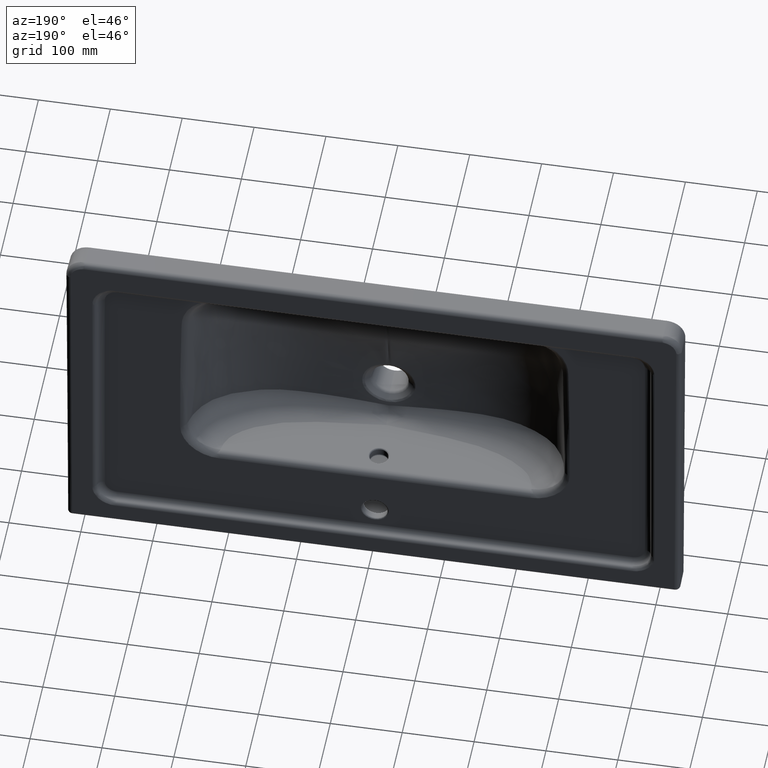
[diagram: clean part render]
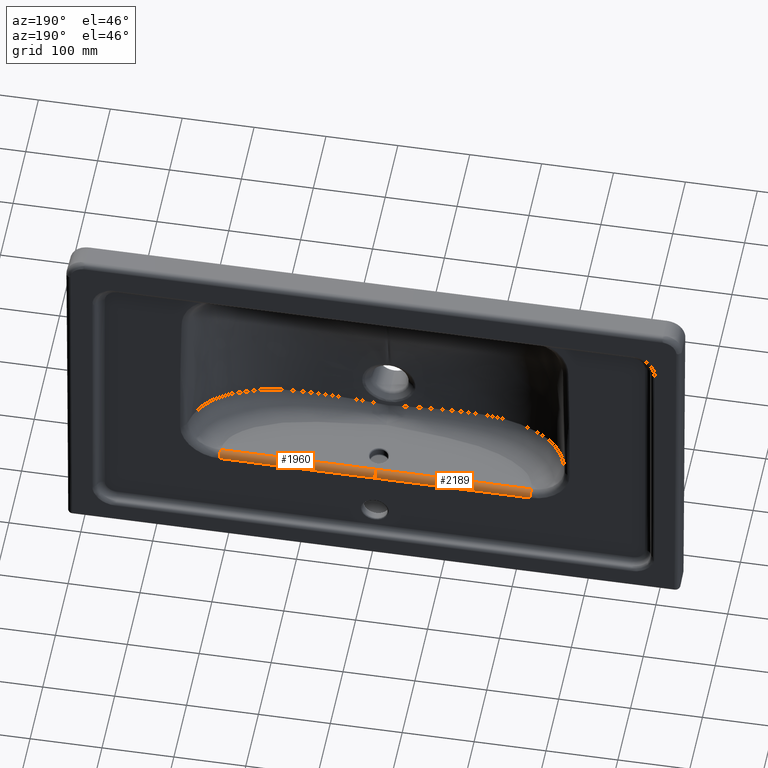
[diagram: same view with one multi-face feature highlighted, each face labeled with its STEP entity id]
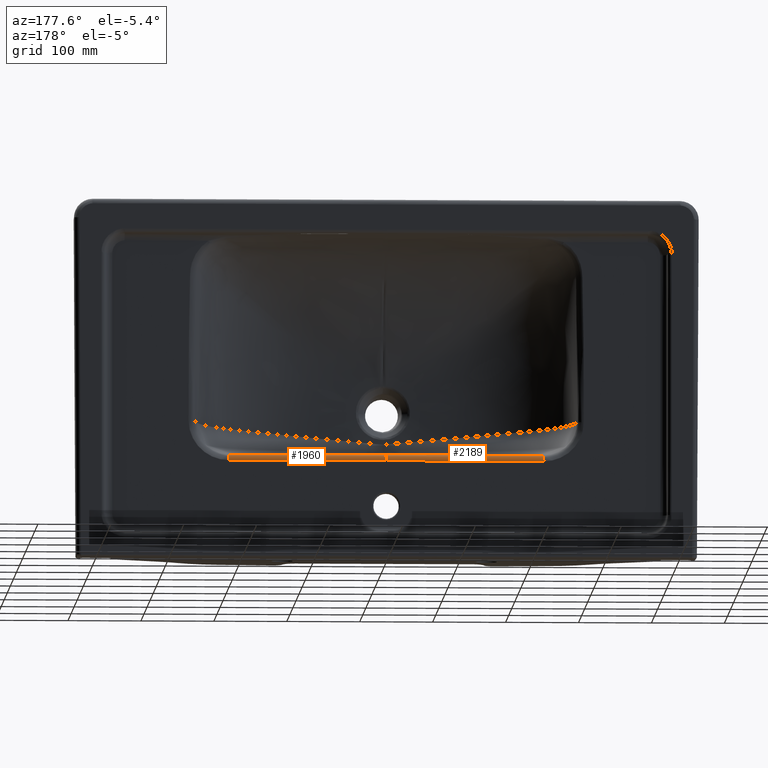
[diagram: same view with one multi-face feature highlighted, each face labeled with its STEP entity id]
A machine part, auxiliary view. The highlighted faces form ONE feature: a constant-radius fillet chain: 2 tangent blend faces with common blend radius 9 mm. The faces share edges in the B-rep.
A second angle (auxiliary view) of the same feature is appended — it is thin or edge-on in the first view.
Their STEP definitions:
[1] entity #1960 (Cylinder):
#210=CYLINDRICAL_SURFACE('',#8098,9.);
#734=CIRCLE('',#8097,9.);
#1316=B_SPLINE_CURVE_WITH_KNOTS('',3,(#26585,#26586,#26587,#26588,#26589,
#26590),.UNSPECIFIED.,.F.,.F.,(4,2,4),(0.,0.5,1.),.UNSPECIFIED.);
#1960=ADVANCED_FACE('',(#2518),#210,.T.);
#2518=FACE_OUTER_BOUND('',#3044,.T.);
#3044=EDGE_LOOP('',(#4481,#4482,#4483,#4484));
#4481=ORIENTED_EDGE('',*,*,#6519,.T.);
#4482=ORIENTED_EDGE('',*,*,#7113,.F.);
#4483=ORIENTED_EDGE('',*,*,#6606,.T.);
#4484=ORIENTED_EDGE('',*,*,#7143,.F.);
#5822=VERTEX_POINT('',#9236);
#5826=VERTEX_POINT('',#9406);
#5907=VERTEX_POINT('',#10076);
#5908=VERTEX_POINT('',#10078);
#6519=EDGE_CURVE('',#5822,#5826,#7730,.T.);
#6606=EDGE_CURVE('',#5908,#5907,#7754,.T.);
#7113=EDGE_CURVE('',#5908,#5826,#1316,.T.);
#7143=EDGE_CURVE('',#5822,#5907,#734,.T.);
#7730=LINE('',#9407,#7814);
#7754=LINE('',#10077,#7838);
#7814=VECTOR('',#8322,1.);
#7838=VECTOR('',#8390,1.);
#8097=AXIS2_PLACEMENT_3D('',#30256,#8767,#8768);
#8098=AXIS2_PLACEMENT_3D('',#30257,#8769,#8770);
#8322=DIRECTION('',(1.,-1.00795385296426E-035,1.0707705283783E-018));
#8390=DIRECTION('',(-1.,0.,-1.0707705283783E-018));
#8767=DIRECTION('',(-1.,0.,0.));
#8768=DIRECTION('',(0.,0.,-1.));
#8769=DIRECTION('',(1.,0.,1.0707705283783E-018));
#8770=DIRECTION('',(0.,0.,1.));
#9236=CARTESIAN_POINT('',(-4.00000000000001,-37.6458258401276,-95.6100423895842));
#9406=CARTESIAN_POINT('',(212.207187202046,-37.6458250139513,-95.610042432882));
#9407=CARTESIAN_POINT('',(213.134275630575,-37.6458258401276,-95.6100423895842));
#10076=CARTESIAN_POINT('',(-4.,-29.1168494463141,-104.597708202375));
#10077=CARTESIAN_POINT('',(-8.00000000000034,-29.1168494463141,-104.597708202375));
#10078=CARTESIAN_POINT('',(212.207665948996,-29.1168494463141,-104.597708193896));
#26585=CARTESIAN_POINT('',(212.207665948996,-29.1168494463141,-104.597708193896));
#26586=CARTESIAN_POINT('',(212.207657428637,-29.1168494463141,-102.320056804102));
#26587=CARTESIAN_POINT('',(212.207644754133,-30.0206433327953,-100.054676228127));
#26588=CARTESIAN_POINT('',(212.20763674839,-33.1563019657066,-96.7503735140821));
#26589=CARTESIAN_POINT('',(212.207641957839,-35.3712739128263,-95.7292525842411));
#26590=CARTESIAN_POINT('',(212.207665949022,-37.6458022402234,-95.610043616265));
#30256=CARTESIAN_POINT('',(-4.,-38.1168494463141,-104.597708202375));
#30257=CARTESIAN_POINT('',(-669.189391889384,-38.1168494463141,-104.597708202375));
[2] entity #2189 (Cylinder):
#226=CYLINDRICAL_SURFACE('',#8254,9.);
#734=CIRCLE('',#8097,9.);
#1680=B_SPLINE_CURVE_WITH_KNOTS('',3,(#52568,#52569,#52570,#52571,#52572,
#52573),.UNSPECIFIED.,.F.,.F.,(4,2,4),(0.,0.5,1.),.UNSPECIFIED.);
#2189=ADVANCED_FACE('',(#2747),#226,.T.);
#2747=FACE_OUTER_BOUND('',#3273,.T.);
#3273=EDGE_LOOP('',(#5523,#5524,#5525,#5526));
#5523=ORIENTED_EDGE('',*,*,#6521,.F.);
#5524=ORIENTED_EDGE('',*,*,#7143,.T.);
#5525=ORIENTED_EDGE('',*,*,#6622,.F.);
#5526=ORIENTED_EDGE('',*,*,#7624,.T.);
#5822=VERTEX_POINT('',#9236);
#5827=VERTEX_POINT('',#9411);
#5907=VERTEX_POINT('',#10076);
#5921=VERTEX_POINT('',#10219);
#6521=EDGE_CURVE('',#5822,#5827,#7731,.T.);
#6622=EDGE_CURVE('',#5921,#5907,#7757,.T.);
#7143=EDGE_CURVE('',#5822,#5907,#734,.T.);
#7624=EDGE_CURVE('',#5921,#5827,#1680,.T.);
#7731=LINE('',#9410,#7815);
#7757=LINE('',#10220,#7841);
#7815=VECTOR('',#8327,1.);
#7841=VECTOR('',#8401,1.);
#8097=AXIS2_PLACEMENT_3D('',#30256,#8767,#8768);
#8254=AXIS2_PLACEMENT_3D('',#56210,#9106,#9107);
#8327=DIRECTION('',(-1.,-1.00795385296426E-035,1.0707705283783E-018));
#8401=DIRECTION('',(1.,0.,-1.0707705283783E-018));
#8767=DIRECTION('',(-1.,0.,0.));
#8768=DIRECTION('',(0.,0.,-1.));
#9106=DIRECTION('',(-1.,0.,1.0707705283783E-018));
#9107=DIRECTION('',(0.,0.,1.));
#9236=CARTESIAN_POINT('',(-4.00000000000001,-37.6458258401276,-95.6100423895842));
#9410=CARTESIAN_POINT('',(-221.134275630575,-37.6458258401276,-95.6100423895842));
#9411=CARTESIAN_POINT('',(-220.207187202046,-37.6458250139513,-95.610042432882));
#10076=CARTESIAN_POINT('',(-4.,-29.1168494463141,-104.597708202375));
#10219=CARTESIAN_POINT('',(-220.207665948996,-29.1168494463141,-104.597708193896));
#10220=CARTESIAN_POINT('',(3.33066907387547E-013,-29.1168494463141,-104.597708202375));
#30256=CARTESIAN_POINT('',(-4.,-38.1168494463141,-104.597708202375));
#52568=CARTESIAN_POINT('',(-220.207665948996,-29.1168494463141,-104.597708202375));
#52569=CARTESIAN_POINT('',(-220.207665948996,-29.1168494463141,-102.320053528523));
#52570=CARTESIAN_POINT('',(-220.207665948996,-30.0206460906068,-100.054669347561));
#52571=CARTESIAN_POINT('',(-220.207665948996,-33.1563141238002,-96.7503646947025));
#52572=CARTESIAN_POINT('',(-220.207665948996,-35.3712926128466,-95.7292456249315));
#52573=CARTESIAN_POINT('',(-220.207665948996,-37.6458258401276,-95.6100423895842));
#56210=CARTESIAN_POINT('',(661.189391889384,-38.1168494463141,-104.597708202375));